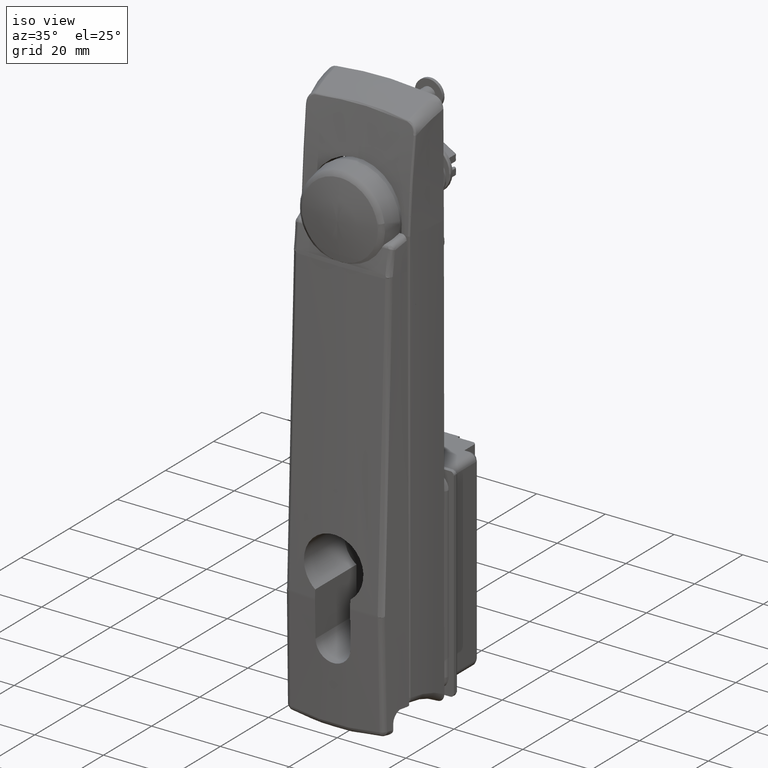
[diagram: clean part render]
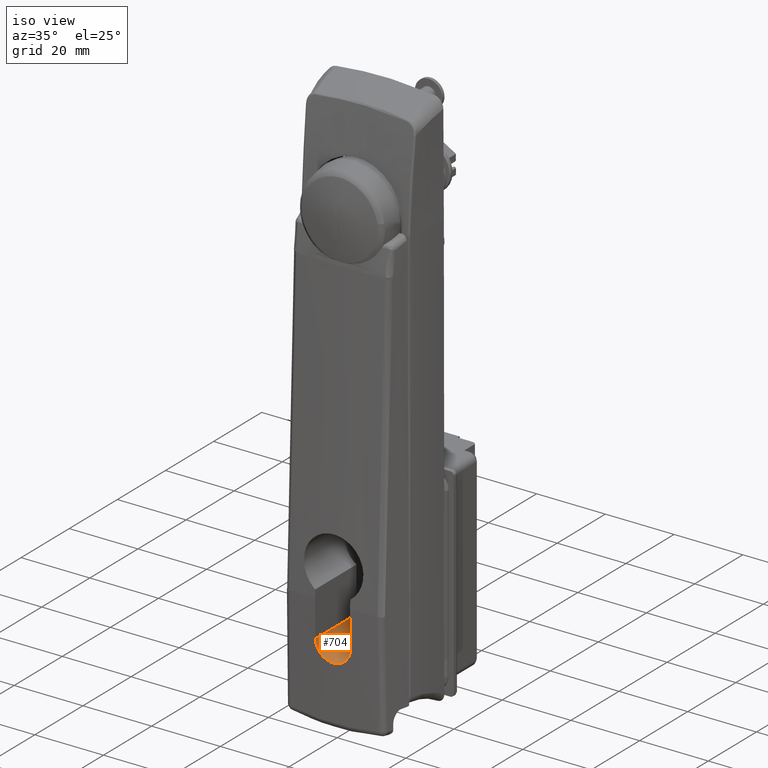
[diagram: same view with one face highlighted and labeled with its STEP entity id]
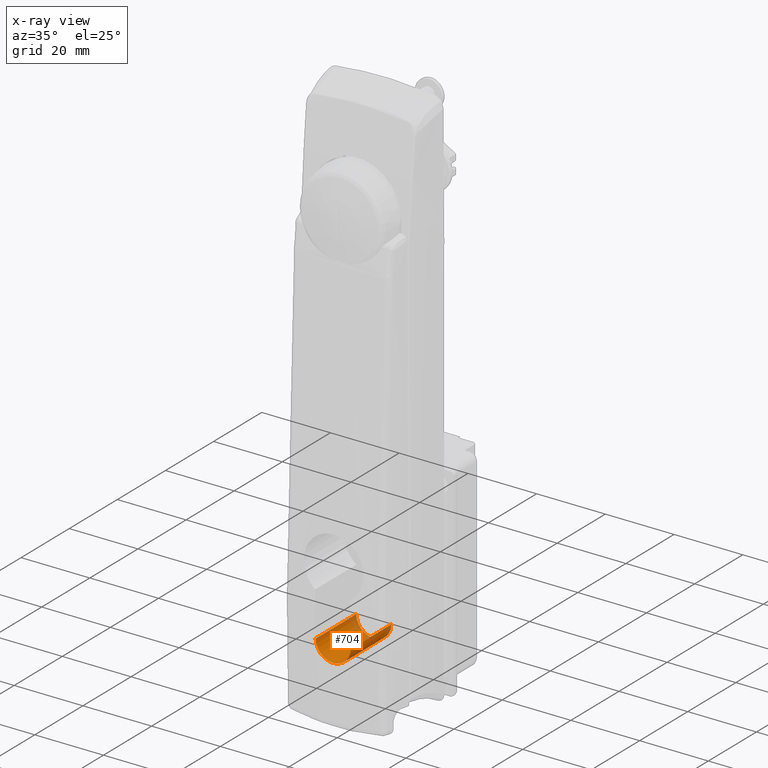
[diagram: x-ray of the same camera — body ghosted, the highlighted face saturated]
A machine part, iso view. The second image highlights one B-rep face of the part: STEP entity #704.
The next image is the same camera in x-ray: the body ghosted, the highlighted face saturated — about 17% of this face is hidden behind the body in this view.
In plain terms, the highlighted face is a freeform B-spline surface patch.
Its self-contained STEP definition (entity closure, byte-faithful):
#544=CARTESIAN_POINT('',(-21.716975177724851,-5.100000242232400,-110.477266316721990));
#545=VERTEX_POINT('',#544);
#570=CARTESIAN_POINT('',(-4.750000605592501,-5.100000242232400,-110.477266316721990));
#571=VERTEX_POINT('',#570);
#577=CARTESIAN_POINT('',(-21.716975177724851,-5.100000242232400,-110.477266316721990));
#578=CARTESIAN_POINT('',(-4.750000605592501,-5.100000242232400,-110.477266316721990));
#579=QUASI_UNIFORM_CURVE('',1,(#577,#578),.UNSPECIFIED.,.F.,.U.);
#580=EDGE_CURVE('',#545,#571,#579,.T.);
#585=CARTESIAN_POINT('',(-22.141149542028160,5.098968128750024,-110.343754510762690));
#586=CARTESIAN_POINT('',(-4.315221882181607,5.098968128750024,-110.343754510762690));
#587=CARTESIAN_POINT('',(-22.141149542028163,5.208918132453940,-115.623890577120750));
#588=CARTESIAN_POINT('',(-4.315221882181608,5.208918132453940,-115.623890577120750));
#589=CARTESIAN_POINT('',(-22.141149542028160,-0.071838617468657,-115.549499511016510));
#590=CARTESIAN_POINT('',(-4.315221882181607,-0.071838617468657,-115.549499511016510));
#591=CARTESIAN_POINT('',(-22.141149542028163,-5.352595367391243,-115.475108444912320));
#592=CARTESIAN_POINT('',(-4.315221882181608,-5.352595367391243,-115.475108444912320));
#593=CARTESIAN_POINT('',(-22.141149542028160,-5.093953865533891,-110.200164800086700));
#594=CARTESIAN_POINT('',(-4.315221882181607,-5.093953865533891,-110.200164800086700));
#602=(BOUNDED_SURFACE()B_SPLINE_SURFACE(1,2,((#585,#587,#589,#591,#593),(#586,#588,#590,#592,#594)),.UNSPECIFIED.,.F.,.F.,.U.)B_SPLINE_SURFACE_WITH_KNOTS((2,2),(3,2,3),(0.0,17.825927659846549),(0.0,8.659411034727858,17.318822069455720),.UNSPECIFIED.)GEOMETRIC_REPRESENTATION_ITEM()RATIONAL_B_SPLINE_SURFACE(((1.0,0.694658370458997,1.0,0.694658370458997,1.0),(1.0,0.694658370458997,1.0,0.694658370458997,1.0)))REPRESENTATION_ITEM('')SURFACE());
#603=CARTESIAN_POINT('',(-21.716975177639601,5.100000242241610,-110.477266320264210));
#604=VERTEX_POINT('',#603);
#605=CARTESIAN_POINT('',(-21.716975177639601,5.100000242241610,-110.477266320264210));
#606=CARTESIAN_POINT('',(-21.710153314561321,5.098201007896087,-110.812964953861990));
#607=CARTESIAN_POINT('',(-21.704354722964691,5.063609811113473,-111.142916024242100));
#608=CARTESIAN_POINT('',(-21.697051358278120,4.964535004636661,-111.629570588442110));
#609=CARTESIAN_POINT('',(-21.694849651916250,4.923587354150645,-111.790399905511510));
#610=CARTESIAN_POINT('',(-21.691880532398020,4.850013135251424,-112.029513103591000));
#611=CARTESIAN_POINT('',(-21.690945124604180,4.823416930478126,-112.108977631788310));
#612=CARTESIAN_POINT('',(-21.689188508366410,4.766260148887499,-112.266672896541910));
#613=CARTESIAN_POINT('',(-21.688371668143581,4.735854271487874,-112.344495713939910));
#614=CARTESIAN_POINT('',(-21.684574644320129,4.574873812237046,-112.728590132226300));
#615=CARTESIAN_POINT('',(-21.682452599997401,4.417699019993179,-113.019944644667600));
#616=CARTESIAN_POINT('',(-21.680664241806141,4.186089773344862,-113.364429301104200));
#617=CARTESIAN_POINT('',(-21.680349963957600,4.137995173515934,-113.432331994351000));
#618=CARTESIAN_POINT('',(-21.679801765146308,4.038205053093151,-113.566117766319610));
#619=CARTESIAN_POINT('',(-21.679567401828489,3.986380212854017,-113.632155303828600));
#620=CARTESIAN_POINT('',(-21.678978653404290,3.826328416318947,-113.826032037104100));
#621=CARTESIAN_POINT('',(-21.678739294741781,3.714110289208090,-113.949021376867290));
#622=CARTESIAN_POINT('',(-21.678369471714181,3.361431632729477,-114.299801530214300));
#623=CARTESIAN_POINT('',(-21.678584675068500,3.105097038725428,-114.509574969869400));
#624=CARTESIAN_POINT('',(-21.679122168246749,2.757574699898896,-114.741028020883210));
#625=CARTESIAN_POINT('',(-21.679243692670092,2.686500003981019,-114.785883890432900));
#626=CARTESIAN_POINT('',(-21.679504880034781,2.542712485867153,-114.871738676112500));
#627=CARTESIAN_POINT('',(-21.679644398903950,2.470035731727928,-114.912733354586190));
#628=CARTESIAN_POINT('',(-21.680078718232309,2.249700862592816,-115.030028836944500));
#629=CARTESIAN_POINT('',(-21.680699161626929,1.949786300756269,-115.171280200822200));
#630=CARTESIAN_POINT('',(-21.681302171790730,1.637799836040786,-115.282734458397700));
#631=CARTESIAN_POINT('',(-21.681716926200661,1.399226905160873,-115.355012859184400));
#632=CARTESIAN_POINT('',(-21.681848989627230,1.318937404981974,-115.377216962581100));
#633=CARTESIAN_POINT('',(-21.682096270629341,1.156801739353822,-115.417782915251710));
#634=CARTESIAN_POINT('',(-21.682211733887350,1.074736635438927,-115.436182241771500));
#635=CARTESIAN_POINT('',(-21.682732126544611,0.664385947828017,-115.517609223815800));
#636=CARTESIAN_POINT('',(-21.682963279833821,0.334536650038157,-115.549798885460010));
#637=CARTESIAN_POINT('',(-21.682965412515362,-0.162521324119047,-115.550107316975400));
#638=CARTESIAN_POINT('',(-21.682909894297900,-0.328590723975615,-115.542156611323900));
#639=CARTESIAN_POINT('',(-21.682744655380219,-0.578286414631966,-115.517804122669010));
#640=CARTESIAN_POINT('',(-21.682675774527670,-0.661779705003106,-115.507578451243800));
#641=CARTESIAN_POINT('',(-21.682514149853510,-0.827205899221711,-115.483168573444500));
#642=CARTESIAN_POINT('',(-21.682421336193588,-0.909325766745579,-115.468974269735500));
#643=CARTESIAN_POINT('',(-21.681905145606379,-1.317010593489949,-115.388229052397510));
#644=CARTESIAN_POINT('',(-21.681319844861690,-1.633914461004066,-115.292633542773300));
#645=CARTESIAN_POINT('',(-21.680551585139359,-2.018467607551193,-115.134316263376600));
#646=CARTESIAN_POINT('',(-21.680396466558140,-2.094794243582386,-115.100694360286000));
#647=CARTESIAN_POINT('',(-21.680089386559150,-2.246257678290454,-115.029460348881600));
#648=CARTESIAN_POINT('',(-21.679937343993309,-2.321445812637617,-114.991805994659200));
#649=CARTESIAN_POINT('',(-21.679501008091389,-2.542731557179118,-114.874091539565900));
#650=CARTESIAN_POINT('',(-21.679234622255091,-2.685401743224340,-114.788918447030600));
#651=CARTESIAN_POINT('',(-21.678592126845668,-3.099229563860853,-114.513830494320400));
#652=CARTESIAN_POINT('',(-21.678367668331301,-3.356340596628897,-114.304534797522710));
#653=CARTESIAN_POINT('',(-21.678674834130749,-3.653458578302445,-114.009427009963700));
#654=CARTESIAN_POINT('',(-21.678766223778190,-3.711590832266710,-113.948762375315700));
#655=CARTESIAN_POINT('',(-21.679014781215042,-3.824128051085419,-113.825397175571790));
#656=CARTESIAN_POINT('',(-21.679172075578489,-3.878697738983622,-113.762536734891500));
#657=CARTESIAN_POINT('',(-21.679753511821399,-4.037391191571142,-113.570478214552100));
#658=CARTESIAN_POINT('',(-21.680820715549981,-4.235630697664461,-113.305143743506410));
#659=CARTESIAN_POINT('',(-21.682588599384381,-4.407444735444639,-113.021489781539500));
#660=CARTESIAN_POINT('',(-21.684225539626159,-4.526214253903546,-112.801753925232700));
#661=CARTESIAN_POINT('',(-21.684823078177470,-4.564119284392167,-112.727340680456090));
#662=CARTESIAN_POINT('',(-21.686130803143691,-4.636491457803786,-112.576130980142810));
#663=CARTESIAN_POINT('',(-21.686839176980570,-4.670833146898988,-112.499573063613100));
#664=CARTESIAN_POINT('',(-21.690639435482609,-4.832193106093200,-112.114875831772490));
#665=CARTESIAN_POINT('',(-21.694527932745132,-4.929738669218160,-111.798435063908200));
#666=CARTESIAN_POINT('',(-21.701827195285968,-5.029596617705051,-111.310987195696800));
#667=CARTESIAN_POINT('',(-21.704504901837360,-5.055084762294775,-111.146358450829400));
#668=CARTESIAN_POINT('',(-21.710386647180400,-5.089923406574733,-110.812659823377100));
#669=CARTESIAN_POINT('',(-21.713564241850481,-5.099100624035533,-110.645115846348800));
#670=CARTESIAN_POINT('',(-21.716975177719601,-5.100000242232400,-110.477266316721990));
#671=B_SPLINE_CURVE_WITH_KNOTS('',3,(#605,#606,#607,#608,#609,#610,#611,#612,#613,#614,#615,#616,#617,#618,#619,#620,#621,#622,#623,#624,#625,#626,#627,#628,#629,#630,#631,#632,#633,#634,#635,#636,#637,#638,#639,#640,#641,#642,#643,#644,#645,#646,#647,#648,#649,#650,#651,#652,#653,#654,#655,#656,#657,#658,#659,#660,#661,#662,#663,#664,#665,#666,#667,#668,#669,#670),.UNSPECIFIED.,.F.,.U.,(4,2,2,2,2,2,2,2,2,2,2,2,1,2,2,2,2,2,2,2,2,2,2,2,2,2,2,1,2,2,2,2,2,4),(0.0,0.062499999999993,0.093749999999989,0.109374999999988,0.124999999999986,0.187499999999981,0.203124999999981,0.218749999999981,0.249999999999981,0.312499999999981,0.328124999999981,0.343749999999982,0.374999999999984,0.406249999999986,0.421874999999986,0.437499999999987,0.499999999999988,0.531249999999988,0.546874999999989,0.562499999999989,0.624999999999990,0.640624999999991,0.656249999999992,0.687499999999992,0.749999999999993,0.765624999999995,0.781249999999996,0.812499999999997,0.843749999999997,0.859374999999998,0.874999999999998,0.937499999999999,0.968749999999999,1.0),.UNSPECIFIED.);
#672=EDGE_CURVE('',#604,#545,#671,.T.);
#673=ORIENTED_EDGE('',*,*,#672,.T.);
#674=ORIENTED_EDGE('',*,*,#580,.T.);
#675=CARTESIAN_POINT('',(-4.750000605592501,5.100000242241610,-110.477266320264210));
#676=VERTEX_POINT('',#675);
#677=CARTESIAN_POINT('',(-4.750000605592501,5.100000242241610,-110.477266320264210));
#678=CARTESIAN_POINT('',(-4.750000605592500,5.097253645687581,-111.080250934135410));
#679=CARTESIAN_POINT('',(-4.750000605592502,4.896923944696470,-112.160012991166600));
#680=CARTESIAN_POINT('',(-4.750000605592501,4.201479585345067,-113.431027759499400));
#681=CARTESIAN_POINT('',(-4.750000605592495,3.449940433902669,-114.245140201363200));
#682=CARTESIAN_POINT('',(-4.750000605592509,2.714980996090298,-114.794712385834900));
#683=CARTESIAN_POINT('',(-4.750000605592483,1.880748407929292,-115.225861821291800));
#684=CARTESIAN_POINT('',(-4.750000605592534,0.916207280889866,-115.504568655761600));
#685=CARTESIAN_POINT('',(-4.750000605592430,-0.250525488401224,-115.590386663041400));
#686=CARTESIAN_POINT('',(-4.750000605592532,-1.389834064778950,-115.407791249395500));
#687=CARTESIAN_POINT('',(-4.750000605592501,-2.392071332119227,-114.986855626727700));
#688=CARTESIAN_POINT('',(-4.750000605592495,-3.211585938167184,-114.448885891855100));
#689=CARTESIAN_POINT('',(-4.750000605592506,-3.951009468903029,-113.740020777876200));
#690=CARTESIAN_POINT('',(-4.750000605592501,-4.564783194494385,-112.815856702206600));
#691=CARTESIAN_POINT('',(-4.750000605592500,-4.991345335479369,-111.703311838730300));
#692=CARTESIAN_POINT('',(-4.750000605592502,-5.097780854765525,-110.913873534591800));
#693=CARTESIAN_POINT('',(-4.750000605592501,-5.100000242232400,-110.477266316721990));
#694=B_SPLINE_CURVE_WITH_KNOTS('',3,(#677,#678,#679,#680,#681,#682,#683,#684,#685,#686,#687,#688,#689,#690,#691,#692,#693),.UNSPECIFIED.,.F.,.U.,(4,1,1,1,1,1,1,1,1,1,1,1,1,1,4),(0.000000665360654,1.808804680780344,3.243456564917089,4.303828885599460,5.114726097201277,5.987942301926239,7.110712794683275,8.108579083661269,9.480790087543852,10.541188008588520,11.352096386420669,12.412469737543111,13.597614649824290,14.657961349816130,15.967784018684689),.UNSPECIFIED.);
#695=EDGE_CURVE('',#676,#571,#694,.T.);
#696=ORIENTED_EDGE('',*,*,#695,.F.);
#697=CARTESIAN_POINT('',(-21.716975177639601,5.100000242241610,-110.477266320264210));
#698=CARTESIAN_POINT('',(-4.750000605592501,5.100000242241610,-110.477266320264210));
#699=QUASI_UNIFORM_CURVE('',1,(#697,#698),.UNSPECIFIED.,.F.,.U.);
#700=EDGE_CURVE('',#604,#676,#699,.T.);
#701=ORIENTED_EDGE('',*,*,#700,.F.);
#702=EDGE_LOOP('',(#673,#674,#696,#701));
#703=FACE_OUTER_BOUND('',#702,.T.);
#704=ADVANCED_FACE('',(#703),#602,.F.);